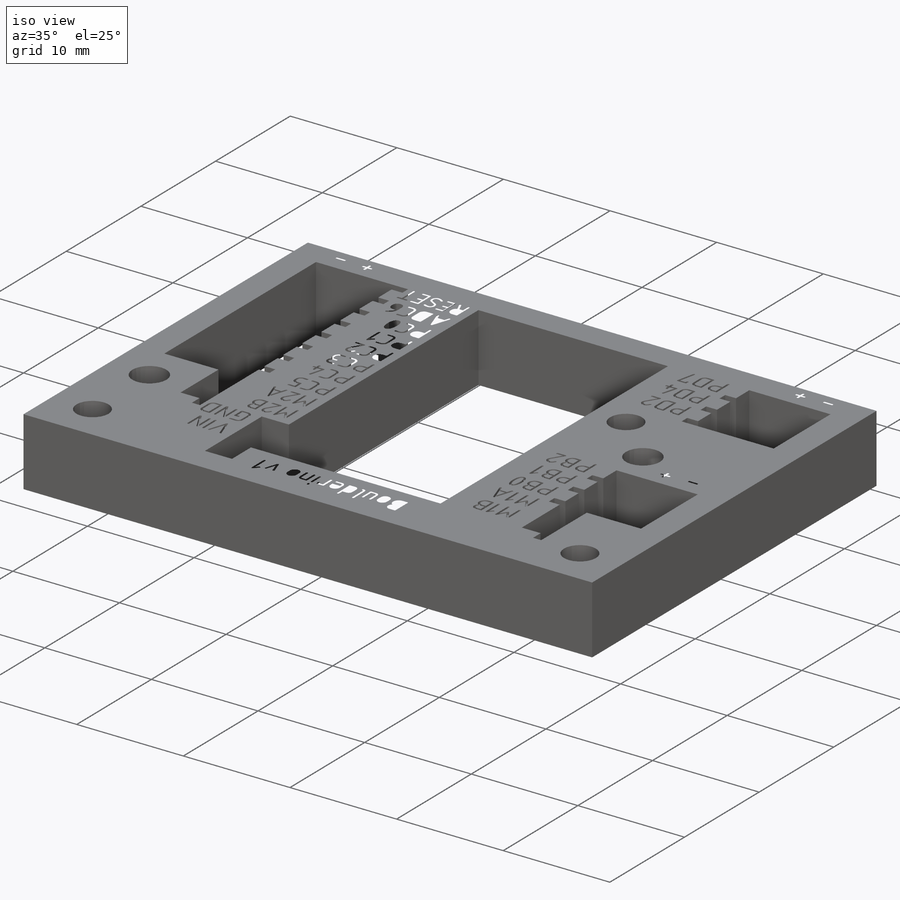
[diagram: iso view]
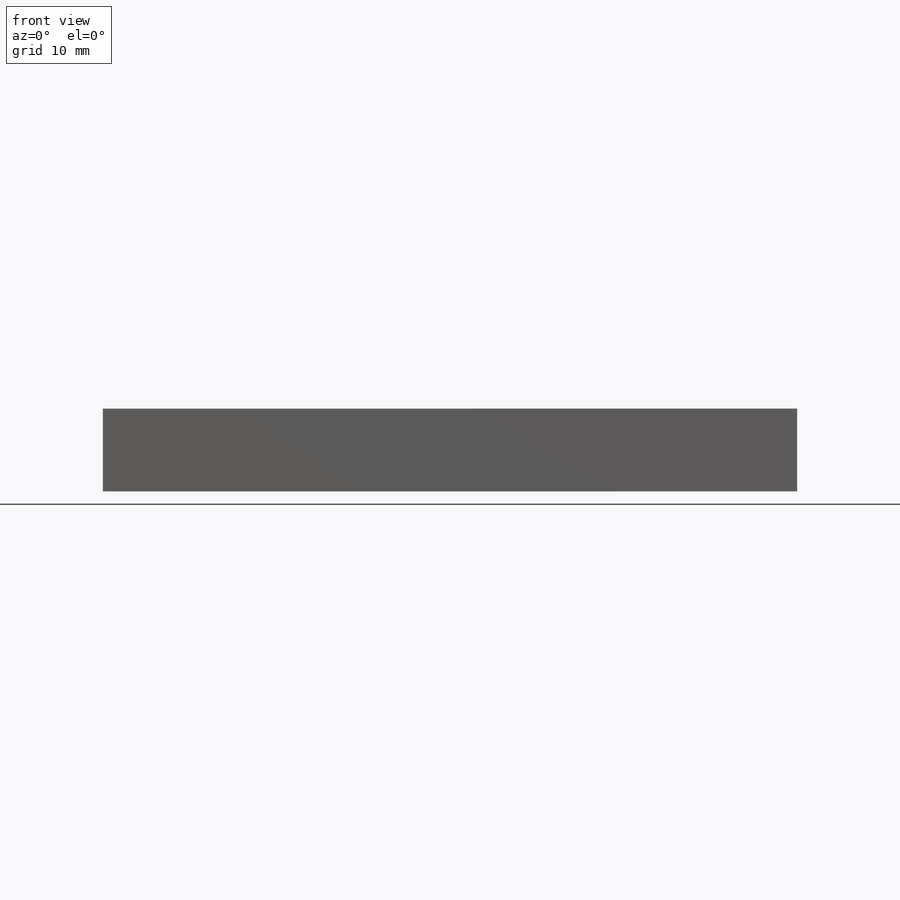
[diagram: front view]
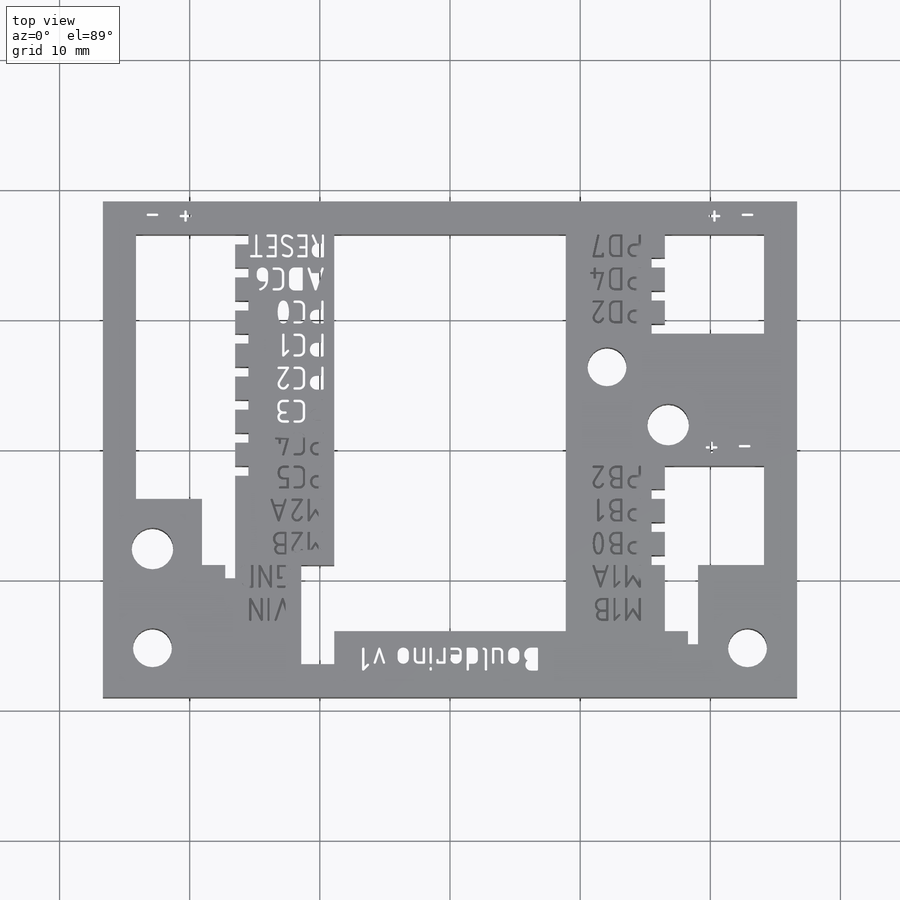
[diagram: top view]
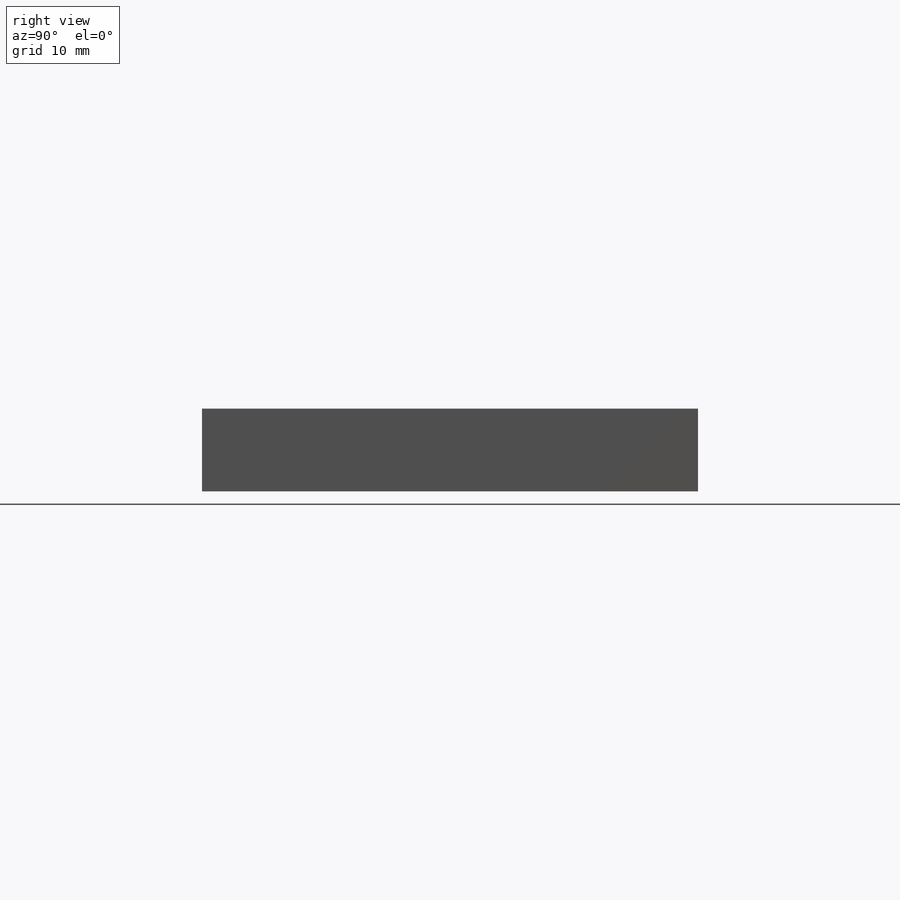
[diagram: right view]
SOLIDWORKS PART (.sldprt)
format: sldprt  version: not decoded by parser v0  size: 2,107,392 bytes
history: native  units: mm
features: sketch x6, cut_extrude x5, pattern_linear x2, material x1, extrude x1 (+11 scaffold rows collapsed)
feature tree (26):
  scaffold x11  (default folders/planes/origin — collapsed)
  material  "Acrylic (Medium-high impact)"
  sketch  "Sketch1"  dims[c1.D18=3.0mm c1.D25=3.2mm c1.D1=25.4mm c1.D2=7.62mm c1.D3=2.54mm c1.D4=2.54mm c1.D5=2.54mm c1.D6=5.08mm c1.D7=20.32mm c1.D8=7.62mm c1.D9=2.54mm c1.D10=2.54mm c1.D11=17.78mm c1.D12=17.78mm c2.D11=17.78mm c2.D12=15.24mm c2.D13=2.54mm c2.D14=2.54mm c2.D15=30.48mm c2.D16=5.08mm c2.D17=5.08mm c2.D2=17.78mm c2.D4=8.89mm c2.D6=7.62mm c2.D7=7.62mm c2.D8=25.4mm c3.D11=30.48mm c3.D12=25.4mm c3.D13=10.16mm c3.D14=7.62mm c3.D15=2.54mm c3.D4=2.54mm c3.D16=15.24mm c3.D17=38.1mm c3.D19=3.556mm c3.D20=3.81mm c3.D21=3.556mm c3.D22=3.81mm c3.D23=12.7mm c3.D24=14.605mm c3.D26=9.652mm c3.D27=3.81mm c3.D28=9.906mm c3.D29=17.145mm c3.D30=7.62mm c3.D31=2.54mm c3.D32=2.54mm c4.D4=53.34mm c4.D15=3.81mm c4.D16=3.81mm c4.D19=11.43mm c4.D21=5.08mm c4.D23=20.955mm c4.D26=25.4mm c4.D29=5.08mm c4.D30=5.08mm c4.D31=17.78mm c4.D32=2.54mm c4.D33=5.08mm c4.D34=8.89mm c4.D35=2.54mm c5.D33=2.54mm c5.D36=25.4mm c5.D37=2.54mm]
  extrude  "Boss-Extrude1"  Depth=6.35mm
  sketch  "Sketch3"  dims[D1=0.762mm D2=1.016mm]
  cut_extrude  "Cut-Extrude1"  [1 undecoded]
  sketch  "Sketch6"  dims[D1=1.016mm D2=0.762mm D3=10.16mm]
  cut_extrude  "Cut-Extrude2"  [1 undecoded]
  pattern_linear  "LPattern1"  Count1=10 Count2=1 Spacing1=2.54mm Spacing2=2.54mm
  sketch  "Sketch7"  dims[D1=0.762mm D2=1.016mm]
  cut_extrude  "Cut-Extrude3"  [1 undecoded]
  sketch  "Sketch8"  dims[D1=0.762mm D2=1.016mm]
  cut_extrude  "Cut-Extrude4"  [1 undecoded]
  pattern_linear  "LPattern2"  Count1=8 Count2=1 Spacing1=2.54mm Spacing2=2.54mm
  sketch  "Sketch10"  dims[D1=0.635mm D2=0.635mm D3=0.635mm D4=2.032mm D5=2.54mm D6=2.032mm D8=2.54mm D11=3.81mm D9=2.0 D10=10.0 D7=12.0]
  cut_extrude  "Cut-Extrude5"  Depth=0.254mm
decode coverage: 10 of 14 modeling features carry decoded parameters
note: 4 parameter values undecoded
summary: no parameter record found for 4 features
note: suppression state not decoded; provenance and decode notes live in map.json
